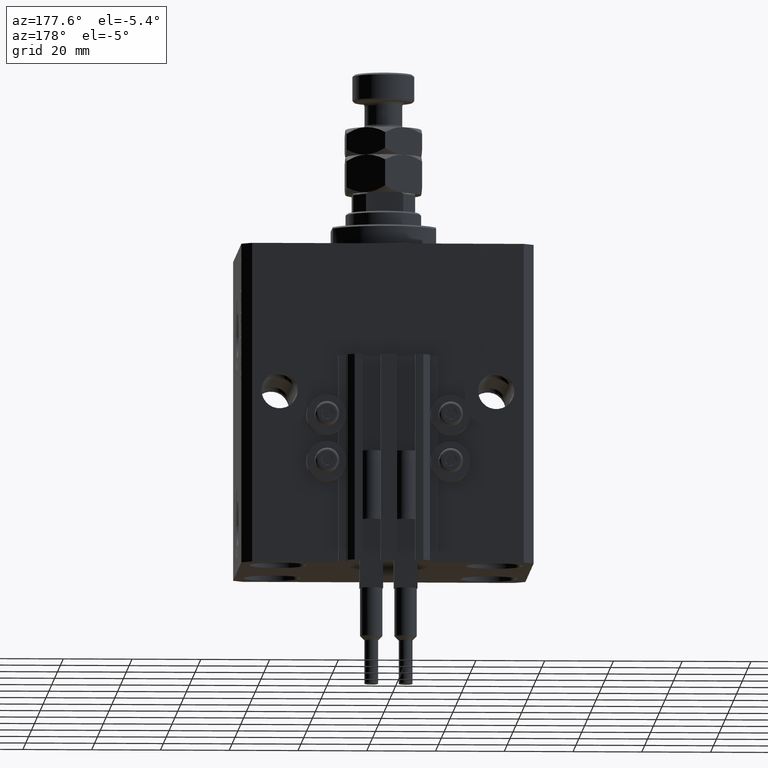
[diagram: clean part render]
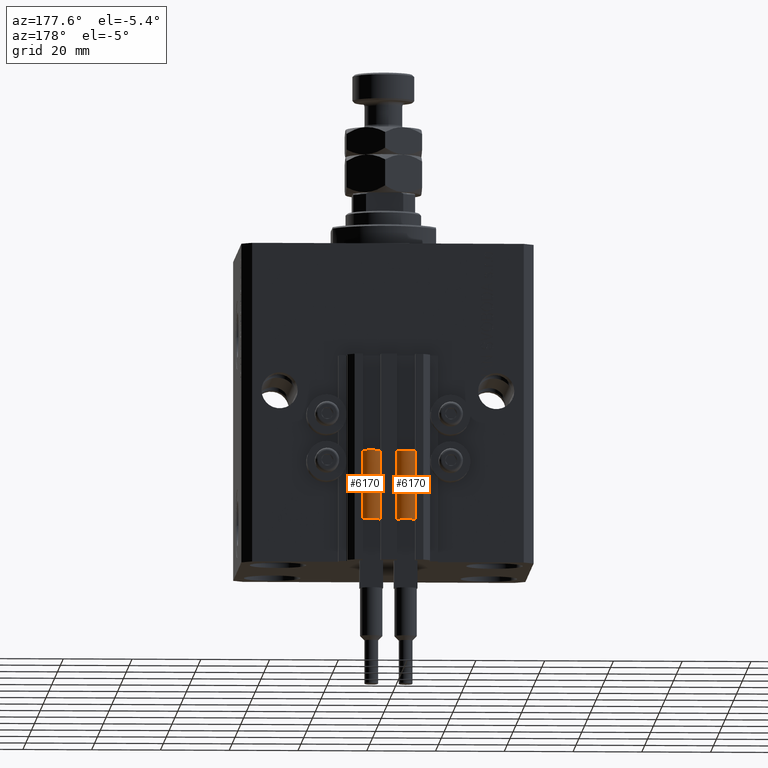
[diagram: same view with one multi-face feature highlighted, each face labeled with its STEP entity id]
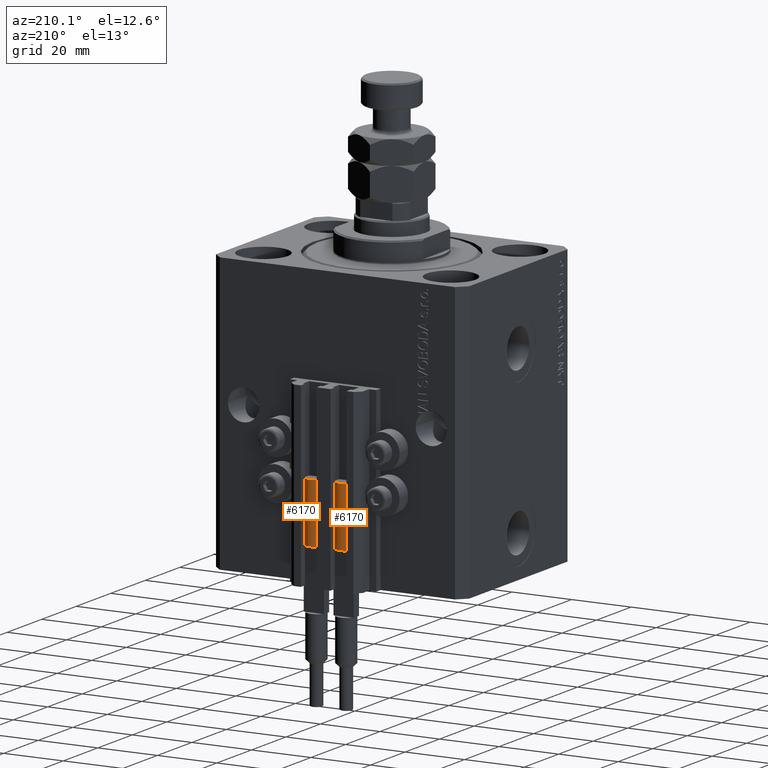
[diagram: same view with one multi-face feature highlighted, each face labeled with its STEP entity id]
A machine part, auxiliary view. The highlighted faces form ONE feature: a constant-radius fillet chain: 2 tangent blend faces with common blend radius 3.4 mm. The faces share edges in the B-rep.
A second angle (auxiliary view) of the same feature is appended — it is thin or edge-on in the first view.
Their STEP definitions:
[1] entity #6170 (Cylinder):
#91 = DIRECTION ( 'NONE',  ( -0.000000000000000000, -0.000000000000000000, -1.000000000000000000 ) ) ;
#244 = EDGE_CURVE ( 'NONE', #29363, #42853, #11806, .T. ) ;
#538 = ORIENTED_EDGE ( 'NONE', *, *, #38077, .T. ) ;
#603 = FACE_OUTER_BOUND ( 'NONE', #3764, .T. ) ;
#1497 = DIRECTION ( 'NONE',  ( 1.000000000000000000, 0.000000000000000000, 0.000000000000000000 ) ) ;
#3407 = CARTESIAN_POINT ( 'NONE',  ( 3.400000000000000355, 4.163799117101001052E-16, 0.000000000000000000 ) ) ;
#3764 = EDGE_LOOP ( 'NONE', ( #6832, #30078, #538, #4120, #47852, #17676 ) ) ;
#4054 = DIRECTION ( 'NONE',  ( 1.000000000000000000, 0.000000000000000000, 0.000000000000000000 ) ) ;
#4120 = ORIENTED_EDGE ( 'NONE', *, *, #5133, .F. ) ;
#4904 = DIRECTION ( 'NONE',  ( 0.000000000000000000, 0.000000000000000000, 1.000000000000000000 ) ) ;
#5133 = EDGE_CURVE ( 'NONE', #45352, #26795, #28228, .T. ) ;
#5210 = CARTESIAN_POINT ( 'NONE',  ( -3.400000000000000355, 0.000000000000000000, 20.00000000000000000 ) ) ;
#6170 = ADVANCED_FACE ( 'NONE', ( #603 ), #35165, .T. ) ;
#6832 = ORIENTED_EDGE ( 'NONE', *, *, #244, .F. ) ;
#8272 = EDGE_CURVE ( 'NONE', #29363, #50581, #48759, .T. ) ;
#11806 = CIRCLE ( 'NONE', #31441, 3.400000000000000355 ) ;
#12807 = DIRECTION ( 'NONE',  ( 1.000000000000000000, 0.000000000000000000, 0.000000000000000000 ) ) ;
#12931 = AXIS2_PLACEMENT_3D ( 'NONE', #33492, #17104, #29626 ) ;
#13241 = CARTESIAN_POINT ( 'NONE',  ( 0.000000000000000000, 0.000000000000000000, 20.00000000000000000 ) ) ;
#16405 = CARTESIAN_POINT ( 'NONE',  ( 0.000000000000000000, 0.000000000000000000, 20.00000000000000000 ) ) ;
#17104 = DIRECTION ( 'NONE',  ( 0.000000000000000000, 0.000000000000000000, 1.000000000000000000 ) ) ;
#17360 = VECTOR ( 'NONE', #49511, 1000.000000000000000 ) ;
#17676 = ORIENTED_EDGE ( 'NONE', *, *, #27057, .F. ) ;
#19144 = DIRECTION ( 'NONE',  ( 0.000000000000000000, 0.000000000000000000, 1.000000000000000000 ) ) ;
#22847 = AXIS2_PLACEMENT_3D ( 'NONE', #13241, #32964, #1497 ) ;
#23115 = VERTEX_POINT ( 'NONE', #35500 ) ;
#23139 = CARTESIAN_POINT ( 'NONE',  ( 0.000000000000000000, 0.000000000000000000, 20.00000000000000000 ) ) ;
#23390 = DIRECTION ( 'NONE',  ( -1.000000000000000000, 0.000000000000000000, 0.000000000000000000 ) ) ;
#26795 = VERTEX_POINT ( 'NONE', #44031 ) ;
#27057 = EDGE_CURVE ( 'NONE', #42853, #23115, #35935, .T. ) ;
#27202 = AXIS2_PLACEMENT_3D ( 'NONE', #23139, #91, #23390 ) ;
#27476 = AXIS2_PLACEMENT_3D ( 'NONE', #43198, #19144, #4054 ) ;
#28228 = LINE ( 'NONE', #5210, #37816 ) ;
#29363 = VERTEX_POINT ( 'NONE', #39906 ) ;
#29626 = DIRECTION ( 'NONE',  ( 1.000000000000000000, 0.000000000000000000, 0.000000000000000000 ) ) ;
#30078 = ORIENTED_EDGE ( 'NONE', *, *, #8272, .T. ) ;
#31441 = AXIS2_PLACEMENT_3D ( 'NONE', #16405, #4904, #12807 ) ;
#32964 = DIRECTION ( 'NONE',  ( 0.000000000000000000, 0.000000000000000000, 1.000000000000000000 ) ) ;
#33492 = CARTESIAN_POINT ( 'NONE',  ( 0.000000000000000000, 0.000000000000000000, 20.00000000000000000 ) ) ;
#33928 = CARTESIAN_POINT ( 'NONE',  ( 3.400000000000000355, 4.163799117101001052E-16, 20.00000000000000000 ) ) ;
#35165 = CYLINDRICAL_SURFACE ( 'NONE', #27202, 3.400000000000000355 ) ;
#35500 = CARTESIAN_POINT ( 'NONE',  ( -3.051229260478471428, 1.500000000000000000, 20.00000000000000000 ) ) ;
#35935 = CIRCLE ( 'NONE', #22847, 3.400000000000000355 ) ;
#36683 = DIRECTION ( 'NONE',  ( -0.000000000000000000, -0.000000000000000000, -1.000000000000000000 ) ) ;
#37673 = CARTESIAN_POINT ( 'NONE',  ( -3.399999999999999467, -4.915049848600952119E-16, 20.00000000000000000 ) ) ;
#37816 = VECTOR ( 'NONE', #36683, 1000.000000000000000 ) ;
#38077 = EDGE_CURVE ( 'NONE', #50581, #26795, #47078, .T. ) ;
#38274 = CIRCLE ( 'NONE', #12931, 3.400000000000000355 ) ;
#39906 = CARTESIAN_POINT ( 'NONE',  ( 3.400000000000000355, 0.000000000000000000, 20.00000000000000000 ) ) ;
#41746 = EDGE_CURVE ( 'NONE', #23115, #45352, #38274, .T. ) ;
#42853 = VERTEX_POINT ( 'NONE', #50280 ) ;
#43198 = CARTESIAN_POINT ( 'NONE',  ( 0.000000000000000000, 0.000000000000000000, 0.000000000000000000 ) ) ;
#44031 = CARTESIAN_POINT ( 'NONE',  ( -3.400000000000000355, 0.000000000000000000, 0.000000000000000000 ) ) ;
#45352 = VERTEX_POINT ( 'NONE', #37673 ) ;
#47078 = CIRCLE ( 'NONE', #27476, 3.400000000000000355 ) ;
#47852 = ORIENTED_EDGE ( 'NONE', *, *, #41746, .F. ) ;
#48759 = LINE ( 'NONE', #33928, #17360 ) ;
#49511 = DIRECTION ( 'NONE',  ( -0.000000000000000000, -0.000000000000000000, -1.000000000000000000 ) ) ;
#50280 = CARTESIAN_POINT ( 'NONE',  ( 3.051229260478471428, 1.500000000000000000, 20.00000000000000000 ) ) ;
#50581 = VERTEX_POINT ( 'NONE', #3407 ) ;
[2] entity #6170 (Cylinder):
#91 = DIRECTION ( 'NONE',  ( -0.000000000000000000, -0.000000000000000000, -1.000000000000000000 ) ) ;
#244 = EDGE_CURVE ( 'NONE', #29363, #42853, #11806, .T. ) ;
#538 = ORIENTED_EDGE ( 'NONE', *, *, #38077, .T. ) ;
#603 = FACE_OUTER_BOUND ( 'NONE', #3764, .T. ) ;
#1497 = DIRECTION ( 'NONE',  ( 1.000000000000000000, 0.000000000000000000, 0.000000000000000000 ) ) ;
#3407 = CARTESIAN_POINT ( 'NONE',  ( 3.400000000000000355, 4.163799117101001052E-16, 0.000000000000000000 ) ) ;
#3764 = EDGE_LOOP ( 'NONE', ( #6832, #30078, #538, #4120, #47852, #17676 ) ) ;
#4054 = DIRECTION ( 'NONE',  ( 1.000000000000000000, 0.000000000000000000, 0.000000000000000000 ) ) ;
#4120 = ORIENTED_EDGE ( 'NONE', *, *, #5133, .F. ) ;
#4904 = DIRECTION ( 'NONE',  ( 0.000000000000000000, 0.000000000000000000, 1.000000000000000000 ) ) ;
#5133 = EDGE_CURVE ( 'NONE', #45352, #26795, #28228, .T. ) ;
#5210 = CARTESIAN_POINT ( 'NONE',  ( -3.400000000000000355, 0.000000000000000000, 20.00000000000000000 ) ) ;
#6170 = ADVANCED_FACE ( 'NONE', ( #603 ), #35165, .T. ) ;
#6832 = ORIENTED_EDGE ( 'NONE', *, *, #244, .F. ) ;
#8272 = EDGE_CURVE ( 'NONE', #29363, #50581, #48759, .T. ) ;
#11806 = CIRCLE ( 'NONE', #31441, 3.400000000000000355 ) ;
#12807 = DIRECTION ( 'NONE',  ( 1.000000000000000000, 0.000000000000000000, 0.000000000000000000 ) ) ;
#12931 = AXIS2_PLACEMENT_3D ( 'NONE', #33492, #17104, #29626 ) ;
#13241 = CARTESIAN_POINT ( 'NONE',  ( 0.000000000000000000, 0.000000000000000000, 20.00000000000000000 ) ) ;
#16405 = CARTESIAN_POINT ( 'NONE',  ( 0.000000000000000000, 0.000000000000000000, 20.00000000000000000 ) ) ;
#17104 = DIRECTION ( 'NONE',  ( 0.000000000000000000, 0.000000000000000000, 1.000000000000000000 ) ) ;
#17360 = VECTOR ( 'NONE', #49511, 1000.000000000000000 ) ;
#17676 = ORIENTED_EDGE ( 'NONE', *, *, #27057, .F. ) ;
#19144 = DIRECTION ( 'NONE',  ( 0.000000000000000000, 0.000000000000000000, 1.000000000000000000 ) ) ;
#22847 = AXIS2_PLACEMENT_3D ( 'NONE', #13241, #32964, #1497 ) ;
#23115 = VERTEX_POINT ( 'NONE', #35500 ) ;
#23139 = CARTESIAN_POINT ( 'NONE',  ( 0.000000000000000000, 0.000000000000000000, 20.00000000000000000 ) ) ;
#23390 = DIRECTION ( 'NONE',  ( -1.000000000000000000, 0.000000000000000000, 0.000000000000000000 ) ) ;
#26795 = VERTEX_POINT ( 'NONE', #44031 ) ;
#27057 = EDGE_CURVE ( 'NONE', #42853, #23115, #35935, .T. ) ;
#27202 = AXIS2_PLACEMENT_3D ( 'NONE', #23139, #91, #23390 ) ;
#27476 = AXIS2_PLACEMENT_3D ( 'NONE', #43198, #19144, #4054 ) ;
#28228 = LINE ( 'NONE', #5210, #37816 ) ;
#29363 = VERTEX_POINT ( 'NONE', #39906 ) ;
#29626 = DIRECTION ( 'NONE',  ( 1.000000000000000000, 0.000000000000000000, 0.000000000000000000 ) ) ;
#30078 = ORIENTED_EDGE ( 'NONE', *, *, #8272, .T. ) ;
#31441 = AXIS2_PLACEMENT_3D ( 'NONE', #16405, #4904, #12807 ) ;
#32964 = DIRECTION ( 'NONE',  ( 0.000000000000000000, 0.000000000000000000, 1.000000000000000000 ) ) ;
#33492 = CARTESIAN_POINT ( 'NONE',  ( 0.000000000000000000, 0.000000000000000000, 20.00000000000000000 ) ) ;
#33928 = CARTESIAN_POINT ( 'NONE',  ( 3.400000000000000355, 4.163799117101001052E-16, 20.00000000000000000 ) ) ;
#35165 = CYLINDRICAL_SURFACE ( 'NONE', #27202, 3.400000000000000355 ) ;
#35500 = CARTESIAN_POINT ( 'NONE',  ( -3.051229260478471428, 1.500000000000000000, 20.00000000000000000 ) ) ;
#35935 = CIRCLE ( 'NONE', #22847, 3.400000000000000355 ) ;
#36683 = DIRECTION ( 'NONE',  ( -0.000000000000000000, -0.000000000000000000, -1.000000000000000000 ) ) ;
#37673 = CARTESIAN_POINT ( 'NONE',  ( -3.399999999999999467, -4.915049848600952119E-16, 20.00000000000000000 ) ) ;
#37816 = VECTOR ( 'NONE', #36683, 1000.000000000000000 ) ;
#38077 = EDGE_CURVE ( 'NONE', #50581, #26795, #47078, .T. ) ;
#38274 = CIRCLE ( 'NONE', #12931, 3.400000000000000355 ) ;
#39906 = CARTESIAN_POINT ( 'NONE',  ( 3.400000000000000355, 0.000000000000000000, 20.00000000000000000 ) ) ;
#41746 = EDGE_CURVE ( 'NONE', #23115, #45352, #38274, .T. ) ;
#42853 = VERTEX_POINT ( 'NONE', #50280 ) ;
#43198 = CARTESIAN_POINT ( 'NONE',  ( 0.000000000000000000, 0.000000000000000000, 0.000000000000000000 ) ) ;
#44031 = CARTESIAN_POINT ( 'NONE',  ( -3.400000000000000355, 0.000000000000000000, 0.000000000000000000 ) ) ;
#45352 = VERTEX_POINT ( 'NONE', #37673 ) ;
#47078 = CIRCLE ( 'NONE', #27476, 3.400000000000000355 ) ;
#47852 = ORIENTED_EDGE ( 'NONE', *, *, #41746, .F. ) ;
#48759 = LINE ( 'NONE', #33928, #17360 ) ;
#49511 = DIRECTION ( 'NONE',  ( -0.000000000000000000, -0.000000000000000000, -1.000000000000000000 ) ) ;
#50280 = CARTESIAN_POINT ( 'NONE',  ( 3.051229260478471428, 1.500000000000000000, 20.00000000000000000 ) ) ;
#50581 = VERTEX_POINT ( 'NONE', #3407 ) ;